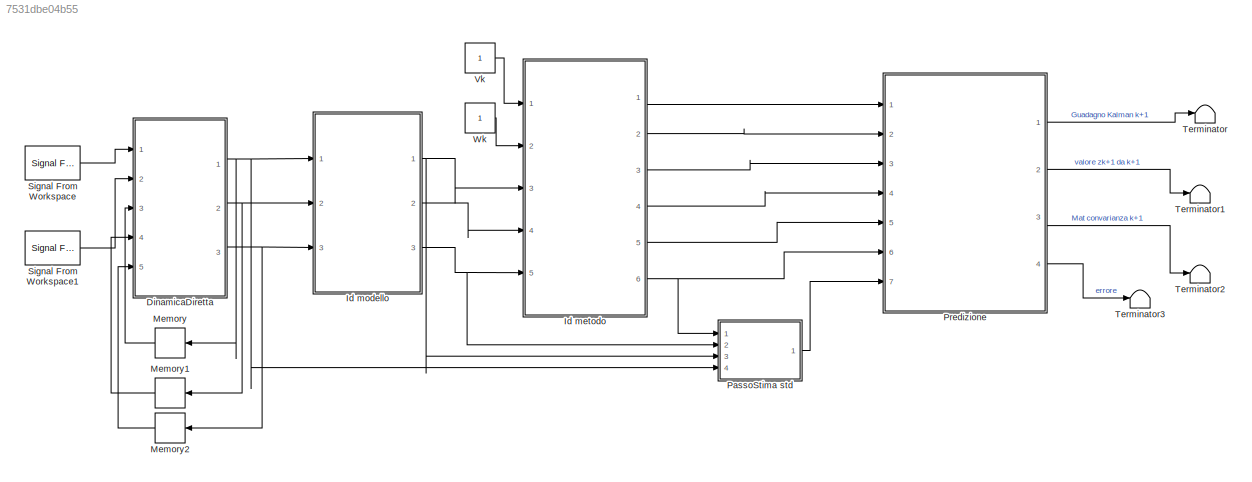
MODEL slx_7531dbe04b55
KIND model
CONFIG AbsTol = auto
CONFIG EnableMultiTasking = off
CONFIG FixedStep = 0.001
CONFIG MaxStep = auto
CONFIG MinStep = auto
CONFIG RelTol = 1e-3
CONFIG SampleTimeConstraint = Unconstrained
CONFIG Solver = FixedStepDiscrete
CONFIG SolverName = FixedStepDiscrete
CONFIG StartTime = 0.0
CONFIG StopTime = inf
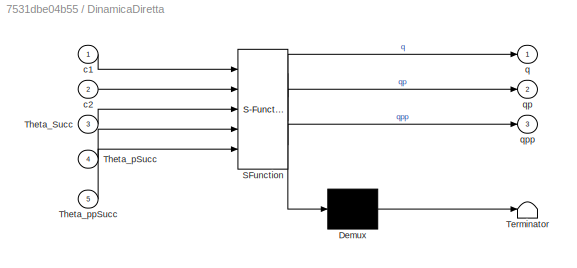
BLOCK [SubSystem] DinamicaDiretta
  ErrorFcn = Stateflow.Translate.translate
  PermitHierarchicalResolution = ExplicitOnly
  Ports = [5, 3]
  RequestExecContextInheritance = off
  SFBlockType = MATLAB Function
  TreatAsAtomicUnit = on
  Variant = off
BLOCK [Demux] DinamicaDiretta/ Demux 
  Outputs = 1
  Ports = [1, 1]
BLOCK [S-Function] DinamicaDiretta/ SFunction 
  EnableBusSupport = on
  FunctionName = sf_sfun
  PortCounts = [5 4]
  Ports = [5, 4]
  SFcnIsStateOwnerBlock = off
  SFunctionDeploymentMode = off
  Tag = Stateflow S-Function kalmanSimulink 2
BLOCK [Terminator] DinamicaDiretta/ Terminator 
BLOCK [Inport] DinamicaDiretta/Theta_Succ
  IconDisplay = Port number
  Port = 3
BLOCK [Inport] DinamicaDiretta/Theta_pSucc
  IconDisplay = Port number
  Port = 4
BLOCK [Inport] DinamicaDiretta/Theta_ppSucc
  IconDisplay = Port number
  Port = 5
BLOCK [Inport] DinamicaDiretta/c1
  IconDisplay = Port number
BLOCK [Inport] DinamicaDiretta/c2
  IconDisplay = Port number
  Port = 2
BLOCK [Outport] DinamicaDiretta/q
  IconDisplay = Port number
BLOCK [Outport] DinamicaDiretta/qp
  IconDisplay = Port number
  Port = 2
BLOCK [Outport] DinamicaDiretta/qpp
  IconDisplay = Port number
  Port = 3
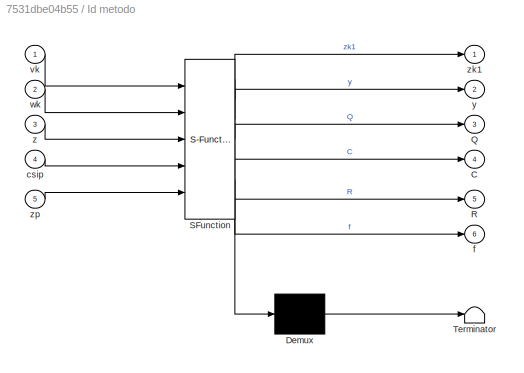
BLOCK [SubSystem] Id metodo
  ErrorFcn = Stateflow.Translate.translate
  PermitHierarchicalResolution = ExplicitOnly
  Ports = [5, 6]
  RequestExecContextInheritance = off
  SFBlockType = MATLAB Function
  TreatAsAtomicUnit = on
  Variant = off
BLOCK [Demux] Id metodo/ Demux 
  Outputs = 1
  Ports = [1, 1]
BLOCK [S-Function] Id metodo/ SFunction 
  EnableBusSupport = on
  FunctionName = sf_sfun
  PortCounts = [5 7]
  Ports = [5, 7]
  SFcnIsStateOwnerBlock = off
  SFunctionDeploymentMode = off
  Tag = Stateflow S-Function kalmanSimulink 3
BLOCK [Terminator] Id metodo/ Terminator 
BLOCK [Outport] Id metodo/C
  IconDisplay = Port number
  Port = 4
BLOCK [Outport] Id metodo/Q
  IconDisplay = Port number
  Port = 3
BLOCK [Outport] Id metodo/R
  IconDisplay = Port number
  Port = 5
BLOCK [Inport] Id metodo/csip
  IconDisplay = Port number
  Port = 4
BLOCK [Outport] Id metodo/f
  IconDisplay = Port number
  Port = 6
BLOCK [Inport] Id metodo/vk
  IconDisplay = Port number
BLOCK [Inport] Id metodo/wk
  IconDisplay = Port number
  Port = 2
BLOCK [Outport] Id metodo/y
  IconDisplay = Port number
  Port = 2
BLOCK [Inport] Id metodo/z
  IconDisplay = Port number
  Port = 3
BLOCK [Outport] Id metodo/zk1
  IconDisplay = Port number
BLOCK [Inport] Id metodo/zp
  IconDisplay = Port number
  Port = 5
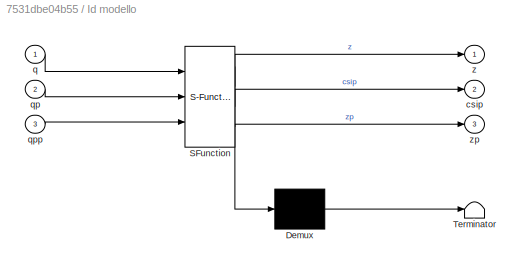
BLOCK [SubSystem] Id modello
  ErrorFcn = Stateflow.Translate.translate
  PermitHierarchicalResolution = ExplicitOnly
  Ports = [3, 3]
  RequestExecContextInheritance = off
  SFBlockType = MATLAB Function
  TreatAsAtomicUnit = on
  Variant = off
BLOCK [Demux] Id modello/ Demux 
  Outputs = 1
  Ports = [1, 1]
BLOCK [S-Function] Id modello/ SFunction 
  EnableBusSupport = on
  FunctionName = sf_sfun
  PortCounts = [3 4]
  Ports = [3, 4]
  SFcnIsStateOwnerBlock = off
  SFunctionDeploymentMode = off
  Tag = Stateflow S-Function kalmanSimulink 1
BLOCK [Terminator] Id modello/ Terminator 
BLOCK [Outport] Id modello/csip
  IconDisplay = Port number
  Port = 2
BLOCK [Inport] Id modello/q
  IconDisplay = Port number
BLOCK [Inport] Id modello/qp
  IconDisplay = Port number
  Port = 2
BLOCK [Inport] Id modello/qpp
  IconDisplay = Port number
  Port = 3
BLOCK [Outport] Id modello/z
  IconDisplay = Port number
BLOCK [Outport] Id modello/zp
  IconDisplay = Port number
  Port = 3
BLOCK [Memory] Memory
  X0 = [0;0]
BLOCK [Memory] Memory1
  X0 = [0;0]
BLOCK [Memory] Memory2
  X0 = [0;0]
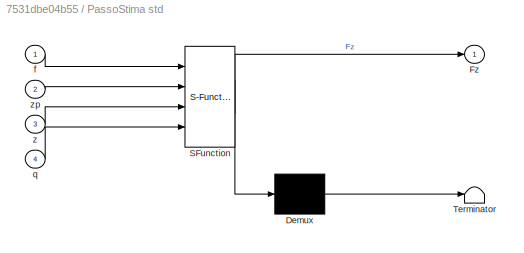
BLOCK [SubSystem] PassoStima std
  ErrorFcn = Stateflow.Translate.translate
  PermitHierarchicalResolution = ExplicitOnly
  Ports = [4, 1]
  RequestExecContextInheritance = off
  SFBlockType = MATLAB Function
  TreatAsAtomicUnit = on
  Variant = off
BLOCK [Demux] PassoStima std/ Demux 
  Outputs = 1
  Ports = [1, 1]
BLOCK [S-Function] PassoStima std/ SFunction 
  EnableBusSupport = on
  FunctionName = sf_sfun
  PortCounts = [4 2]
  Ports = [4, 2]
  SFcnIsStateOwnerBlock = off
  SFunctionDeploymentMode = off
  Tag = Stateflow S-Function kalmanSimulink 4
BLOCK [Terminator] PassoStima std/ Terminator 
BLOCK [Outport] PassoStima std/Fz
  IconDisplay = Port number
BLOCK [Inport] PassoStima std/f
  IconDisplay = Port number
BLOCK [Inport] PassoStima std/q
  IconDisplay = Port number
  Port = 4
BLOCK [Inport] PassoStima std/z
  IconDisplay = Port number
  Port = 3
BLOCK [Inport] PassoStima std/zp
  IconDisplay = Port number
  Port = 2
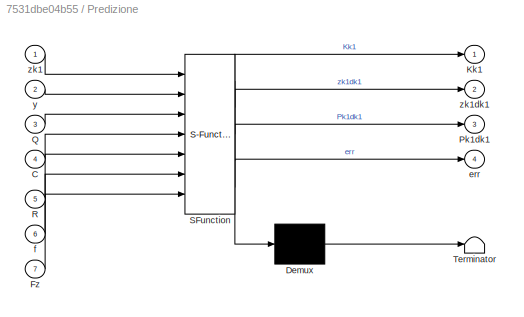
BLOCK [SubSystem] Predizione
  ErrorFcn = Stateflow.Translate.translate
  PermitHierarchicalResolution = ExplicitOnly
  Ports = [7, 4]
  RequestExecContextInheritance = off
  SFBlockType = MATLAB Function
  TreatAsAtomicUnit = on
  Variant = off
BLOCK [Demux] Predizione/ Demux 
  Outputs = 1
  Ports = [1, 1]
BLOCK [S-Function] Predizione/ SFunction 
  EnableBusSupport = on
  FunctionName = sf_sfun
  PortCounts = [7 5]
  Ports = [7, 5]
  SFcnIsStateOwnerBlock = off
  SFunctionDeploymentMode = off
  Tag = Stateflow S-Function kalmanSimulink 5
BLOCK [Terminator] Predizione/ Terminator 
BLOCK [Inport] Predizione/C
  IconDisplay = Port number
  Port = 4
BLOCK [Inport] Predizione/Fz
  IconDisplay = Port number
  Port = 7
BLOCK [Outport] Predizione/Kk1
  IconDisplay = Port number
BLOCK [Outport] Predizione/Pk1dk1
  IconDisplay = Port number
  Port = 3
BLOCK [Inport] Predizione/Q
  IconDisplay = Port number
  Port = 3
BLOCK [Inport] Predizione/R
  IconDisplay = Port number
  Port = 5
BLOCK [Outport] Predizione/err
  IconDisplay = Port number
  Port = 4
BLOCK [Inport] Predizione/f
  IconDisplay = Port number
  Port = 6
BLOCK [Inport] Predizione/y
  IconDisplay = Port number
  Port = 2
BLOCK [Inport] Predizione/zk1
  IconDisplay = Port number
BLOCK [Outport] Predizione/zk1dk1
  IconDisplay = Port number
  Port = 2
BLOCK [Reference] Signal From Workspace  REF=dspsrcs4/Signal From
Workspace
  Ports = [0, 1]
  SourceBlock = dspsrcs4/Signal From\nWorkspace
  SourceProductBaseCode = DS
  SourceProductName = DSP System Toolbox
  SourceType = Signal From Workspace
BLOCK [Reference] Signal From Workspace1  REF=dspsrcs4/Signal From
Workspace
  Ports = [0, 1]
  SourceBlock = dspsrcs4/Signal From\nWorkspace
  SourceProductBaseCode = DS
  SourceProductName = DSP System Toolbox
  SourceType = Signal From Workspace
BLOCK [Terminator] Terminator
BLOCK [Terminator] Terminator1
BLOCK [Terminator] Terminator2
BLOCK [Terminator] Terminator3
BLOCK [Constant] Vk
BLOCK [Constant] Wk
NET DinamicaDiretta:1 -> Id modello:1, Memory:1, PassoStima std:4
NET DinamicaDiretta:2 -> Id modello:2, Memory1:1
NET DinamicaDiretta:3 -> Id modello:3, Memory2:1
LINE Id metodo:1 -> Predizione:1
LINE Id metodo:2 -> Predizione:2
LINE Id metodo:3 -> Predizione:3
LINE Id metodo:4 -> Predizione:4
LINE Id metodo:5 -> Predizione:5
NET Id metodo:6 -> PassoStima std:1, Predizione:6
NET Id modello:1 -> Id metodo:3, PassoStima std:3
LINE Id modello:2 -> Id metodo:4
NET Id modello:3 -> Id metodo:5, PassoStima std:2
LINE Memory1:1 -> DinamicaDiretta:4
LINE Memory2:1 -> DinamicaDiretta:5
LINE Memory:1 -> DinamicaDiretta:3
LINE PassoStima std:1 -> Predizione:7
LINE Predizione:1 -> Terminator:1
LINE Predizione:2 -> Terminator1:1
LINE Predizione:3 -> Terminator2:1
LINE Predizione:4 -> Terminator3:1
LINE Signal From Workspace1:1 -> DinamicaDiretta:2
LINE Signal From Workspace:1 -> DinamicaDiretta:1
LINE Vk:1 -> Id metodo:1
LINE Wk:1 -> Id metodo:2
note: NET lines group one-source signal fan-out (src -> all destinations, sorted); 1:1 wires keep LINE
CHART Id modello states=1 transitions=1
  STATE_LABEL 'eML_blk_kernel()'
  STATE_LABEL "SCRIPT:\nfunction [z,csip,zp] = IdentificazioneModello(q,qp,qpp)\n\nxp = [qpp ; qp];\ncsi = ones(2);\nz = [qp, q, csi]';\ncsip = zeros(2); % matrice di zero px1\n% p in questi caso = 2\nzp = [qpp, qp, csip]';\n\n\n"
CHART DinamicaDiretta states=1 transitions=1
  STATE_LABEL 'eML_blk_kernel()'
  STATE_LABEL 'SCRIPT:\nfunction [q,qp,qpp]= DinInversa(c1,c2, Theta_Succ, Theta_pSucc, Theta_ppSucc)\n\ntau = [c1;c2];\n\n\n% Il calcolo della dinamica inversa va fatto passo passo:\n\n\nCondizioni = [Theta_Succ(1),Theta_Succ(2),Theta_pSucc(1),Theta_pSucc(2)];\n\n[Theta_pSucc, Theta_Succ,Theta_ppSucc] = SoluzioniEquazioniDifferenziali(Condizioni,tau);\n\n q = Theta_Succ;\n qp = Theta_pSucc;\n qpp = Theta_ppSucc;\n\n\n'
CHART Id metodo states=1 transitions=1
  STATE_LABEL 'eML_blk_kernel()'
  STATE_LABEL "SCRIPT:\nfunction [zk1,y,Q,C,R,f]= IdentificazioneMetodo(vk,wk,z,csip, zp)\ndt = 0.001;\nf = z + zp*dt;\nVg = [vk 0 ; 0 vk;csip];\nzk1 = f+Vg; % z(k+1)\nQ = cov(Vg*Vg');\nC = [zeros(1,1), eye(1), zeros(1,2)];\ny = C*z + wk;\nR = cov(wk*wk');"
CHART PassoStima std states=1 transitions=1
  STATE_LABEL 'eML_blk_kernel()'
  STATE_LABEL 'SCRIPT:\nfunction Fz = Stima(f,zp,z, q)\n% raccolta dati\ntheta1pp = zp(1);\ntheta2pp = zp(2);\ntheta1p = zp(3);\ntheta2p = zp(4);\ntheta1 = q(1);\ntheta2 = q(2);\n\nzk1M11 = theta1p + theta1pp/1000;\nzk1M12 = theta2p + theta2pp/1000;\nzk1M21 = theta1 + theta1p/1000;\nzk1M22 = theta2 + theta2pp/1000;\n% Taylor primo ordine\nzk1tMatrix = [ zk1M11, zk1M12; \n               zk1M21, zk1M22;\n               1 , 1;\n    ...<+311ch>'
CHART Predizione states=1 transitions=1
  STATE_LABEL 'eML_blk_kernel()'
  STATE_LABEL "SCRIPT:\nfunction [Kk1,zk1dk1,Pk1dk1,err] = Predizione(zk1,y,Q,C,R,f,Fz)\n\nzk1dk = f;\nerr = zk1 - zk1dk; % rivedere bene\nP = cov(err*err');\nPk1 = Fz*P*Fz'+cov(Q);\n\nKk1 = Pk1*C'*(C*Pk1*C' +R)^-1;\nzk1dk1 = zk1dk+Kk1*(y-C*zk1dk);\nPk1dk1 = Pk1-Kk1*C*Pk1;"
